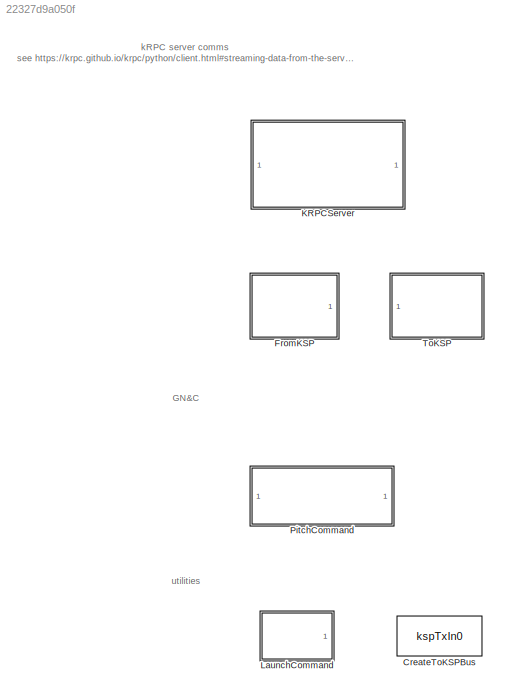
MODEL slx_22327d9a050f
KIND library
CONFIG AbsTol = auto
CONFIG EnableMultiTasking = off
CONFIG FixedStep = auto
CONFIG MaxStep = auto
CONFIG MinStep = auto
CONFIG RelTol = 1e-3
CONFIG SampleTimeConstraint = Unconstrained
CONFIG SolverName = VariableStepAuto
CONFIG StartTime = 0.0
CONFIG StopTime = 10.0
BLOCK [Constant] CreateToKSPBus
  OutDataTypeStr = Bus: kspTxIn
  Value = kspTxIn0
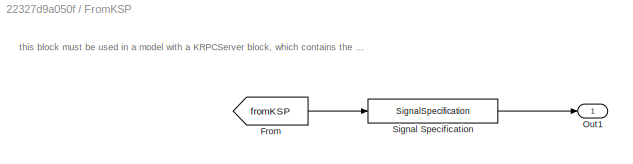
BLOCK [SubSystem] FromKSP
  Ports = [0, 1]
  RequestExecContextInheritance = off
BLOCK [From] FromKSP/From
  GotoTag = fromKSP
  TagVisibility = global
BLOCK [Outport] FromKSP/Out1
BLOCK [SignalSpecification] FromKSP/Signal Specification
  BusOutputAsStruct = on
  OutDataTypeStr = Bus: kspRxOut
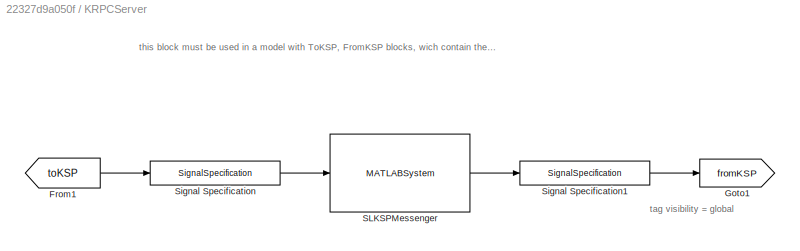
BLOCK [SubSystem] KRPCServer
  Ports = []
  RequestExecContextInheritance = off
BLOCK [From] KRPCServer/From1
  GotoTag = toKSP
  TagVisibility = global
BLOCK [Goto] KRPCServer/Goto1
  GotoTag = fromKSP
  TagVisibility = global
BLOCK [MATLABSystem] KRPCServer/SLKSPMessenger
  MaskDisplay = disp('KSP TX/RX');\nport_label('input',1,'u');\nport_label('output',1,'y');
  MaskType = ksp.SLKSPMessenger
  Ports = [1, 1]
  SimulateUsing = Interpreted execution
  System = ksp.SLKSPMessenger
BLOCK [SignalSpecification] KRPCServer/Signal Specification
  BusOutputAsStruct = on
  OutDataTypeStr = Bus: kspTxIn
BLOCK [SignalSpecification] KRPCServer/Signal Specification1
  BusOutputAsStruct = on
  OutDataTypeStr = Bus: kspRxOut
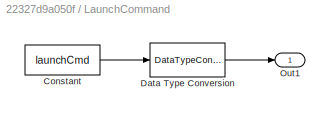
BLOCK [SubSystem] LaunchCommand
  Ports = [0, 1]
  RequestExecContextInheritance = off
BLOCK [Constant] LaunchCommand/Constant
  Value = launchCmd
BLOCK [DataTypeConversion] LaunchCommand/Data Type Conversion
  OutDataTypeStr = boolean
  RndMeth = Floor
  SaturateOnIntegerOverflow = off
BLOCK [Outport] LaunchCommand/Out1
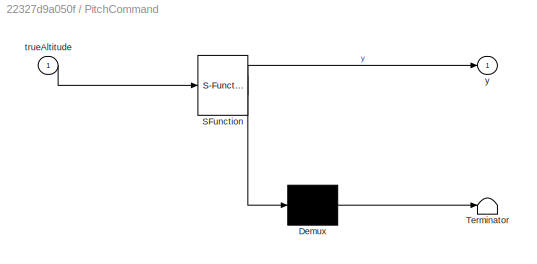
BLOCK [SubSystem] PitchCommand
  ErrorFcn = Stateflow.Translate.translate
  PermitHierarchicalResolution = ExplicitOnly
  Ports = [1, 1]
  RequestExecContextInheritance = off
  SFBlockType = MATLAB Function
  TreatAsAtomicUnit = on
BLOCK [Demux] PitchCommand/ Demux 
  Outputs = 1
  Ports = [1, 1]
BLOCK [S-Function] PitchCommand/ SFunction 
  EnableBusSupport = on
  FunctionName = sf_sfun
  Parameters = altitudePitchVals
  PortCounts = [1 2]
  Ports = [1, 2]
  SFcnIsStateOwnerBlock = off
  SFunctionDeploymentMode = off
  Tag = Stateflow S-Function 2
BLOCK [Terminator] PitchCommand/ Terminator 
BLOCK [Inport] PitchCommand/trueAltitude
BLOCK [Outport] PitchCommand/y
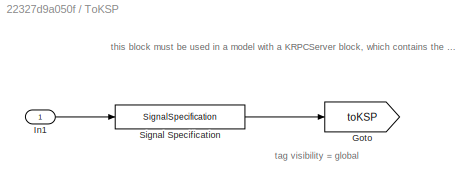
BLOCK [SubSystem] ToKSP
  Ports = [1]
  RequestExecContextInheritance = off
BLOCK [Goto] ToKSP/Goto
  GotoTag = toKSP
  TagVisibility = global
BLOCK [Inport] ToKSP/In1
BLOCK [SignalSpecification] ToKSP/Signal Specification
  BusOutputAsStruct = on
  OutDataTypeStr = Bus: kspTxIn
ANNOTATION (root): GN&C
ANNOTATION (root): kRPC server comms see https://krpc.github.io/krpc/python/client.html#streaming-data-from-the-server
ANNOTATION (root): utilities
ANNOTATION FromKSP: this block must be used in a model with a KRPCServer block, which contains the fromKSP goto block
ANNOTATION KRPCServer: tag visibility = global
ANNOTATION KRPCServer: this block must be used in a model with ToKSP, FromKSP blocks, wich contain the toKSP from and fromKSP to blocks
ANNOTATION ToKSP: tag visibility = global
ANNOTATION ToKSP: this block must be used in a model with a KRPCServer block, which contains the toKSP from block
LINE FromKSP/From:1 -> FromKSP/Signal Specification:1
LINE FromKSP/Signal Specification:1 -> FromKSP/Out1:1
LINE KRPCServer/From1:1 -> KRPCServer/Signal Specification:1
LINE KRPCServer/SLKSPMessenger:1 -> KRPCServer/Signal Specification1:1
LINE KRPCServer/Signal Specification1:1 -> KRPCServer/Goto1:1
LINE KRPCServer/Signal Specification:1 -> KRPCServer/SLKSPMessenger:1
LINE LaunchCommand/Constant:1 -> LaunchCommand/Data Type Conversion:1
LINE LaunchCommand/Data Type Conversion:1 -> LaunchCommand/Out1:1
LINE ToKSP/In1:1 -> ToKSP/Signal Specification:1
LINE ToKSP/Signal Specification:1 -> ToKSP/Goto:1
CHART PitchCommand states=1 transitions=1
  STATE_LABEL 'eML_blk_kernel()'
  STATE_LABEL "SCRIPT:\nfunction y = calcPitchCommand(trueAltitude, altitudePitchVals)\n%CALCPITCHCOMMAND Calculate pitch command (deg.).\n\nvalidateattributes(trueAltitude,{'double'},{'scalar'})\nvalidateattributes(altitudePitchVals,{'numeric'},{'2d','ncols',2})\n\naltitude0 = altitudePitchVals(:,1);\npitch0 = altitudePitchVals(:,2);\ny = interp1(altitude0,pitch0,trueAltitude);\nif trueAltitude <= altitude0(1)\n    y = pi...<+76ch>"
CHART  states=0 transitions=0
